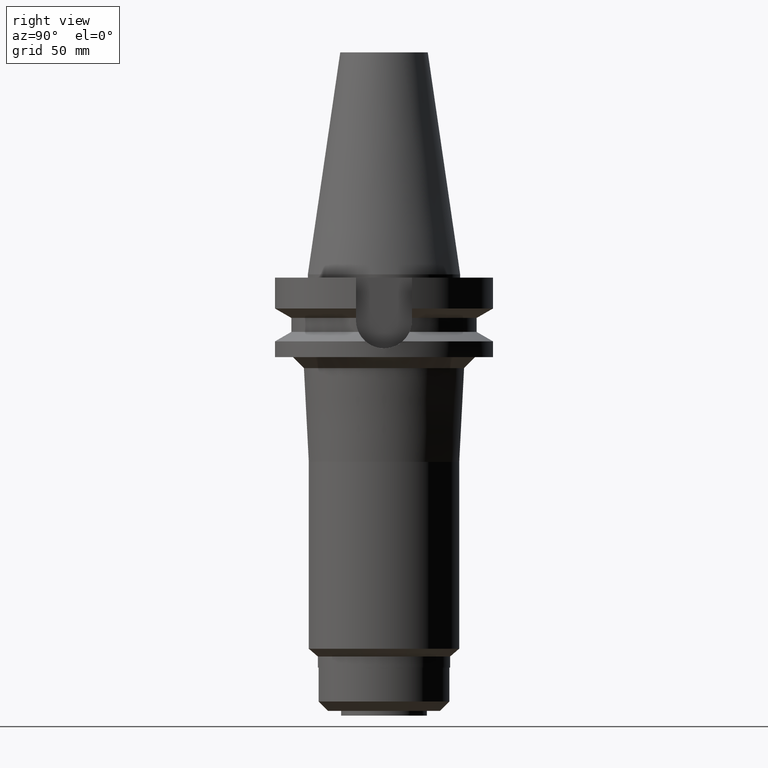
[diagram: clean part render]
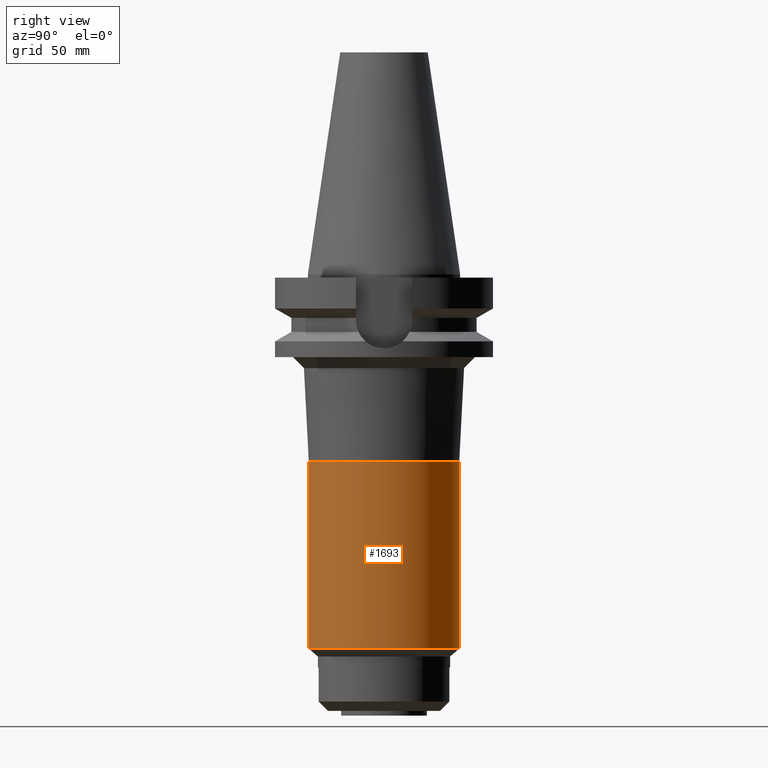
[diagram: same view with one face highlighted and labeled with its STEP entity id]
A machine part, right view. The second image highlights one B-rep face of the part: STEP entity #1693.
In plain terms, the highlighted cylindrical surface (partial cylindrical patch) has radius 34.5 mm, axis along (0, 0, -1).
Its self-contained STEP definition (entity closure, byte-faithful):
#406=CARTESIAN_POINT('',(0.E0,0.E0,-1.717E2));
#407=DIRECTION('',(0.E0,0.E0,1.E0));
#408=DIRECTION('',(0.E0,-1.E0,0.E0));
#409=AXIS2_PLACEMENT_3D('',#406,#407,#408);
#414=DIRECTION('',(0.E0,-8.987495047422E-14,-1.E0));
#415=VECTOR('',#414,8.569999999999E1);
#416=CARTESIAN_POINT('',(0.E0,3.45E1,-8.6E1));
#417=LINE('',#416,#415);
#421=DIRECTION('',(0.E0,8.987495047422E-14,-1.E0));
#422=VECTOR('',#421,8.569999999999E1);
#423=CARTESIAN_POINT('',(0.E0,-3.45E1,-8.6E1));
#424=LINE('',#423,#422);
#450=CARTESIAN_POINT('',(0.E0,0.E0,-8.6E1));
#451=DIRECTION('',(0.E0,0.E0,-1.E0));
#452=DIRECTION('',(0.E0,1.E0,0.E0));
#453=AXIS2_PLACEMENT_3D('',#450,#451,#452);
#1192=CARTESIAN_POINT('',(0.E0,3.449999999999E1,-1.717E2));
#1193=VERTEX_POINT('',#1192);
#1194=CARTESIAN_POINT('',(0.E0,-3.449999999998E1,-1.717E2));
#1195=VERTEX_POINT('',#1194);
#1196=CARTESIAN_POINT('',(0.E0,3.45E1,-8.6E1));
#1197=VERTEX_POINT('',#1196);
#1198=CARTESIAN_POINT('',(0.E0,-3.45E1,-8.6E1));
#1199=VERTEX_POINT('',#1198);
#1679=CARTESIAN_POINT('',(0.E0,2.657606018830E-14,1.1701E2));
#1680=DIRECTION('',(0.E0,0.E0,-1.E0));
#1681=DIRECTION('',(0.E0,-1.E0,0.E0));
#1682=AXIS2_PLACEMENT_3D('',#1679,#1680,#1681);
#1683=CYLINDRICAL_SURFACE('',#1682,3.45E1);
#1685=ORIENTED_EDGE('',*,*,#1684,.T.);
#1686=ORIENTED_EDGE('',*,*,#1674,.F.);
#1688=ORIENTED_EDGE('',*,*,#1687,.F.);
#1690=ORIENTED_EDGE('',*,*,#1689,.F.);
#1691=EDGE_LOOP('',(#1685,#1686,#1688,#1690));
#1692=FACE_OUTER_BOUND('',#1691,.F.);
#410=CIRCLE('',#409,3.449999999998E1);
#454=CIRCLE('',#453,3.45E1);
#1674=EDGE_CURVE('',#1195,#1193,#410,.T.);
#1684=EDGE_CURVE('',#1197,#1193,#417,.T.);
#1687=EDGE_CURVE('',#1199,#1195,#424,.T.);
#1689=EDGE_CURVE('',#1197,#1199,#454,.T.);
#1693=ADVANCED_FACE('',(#1692),#1683,.T.);